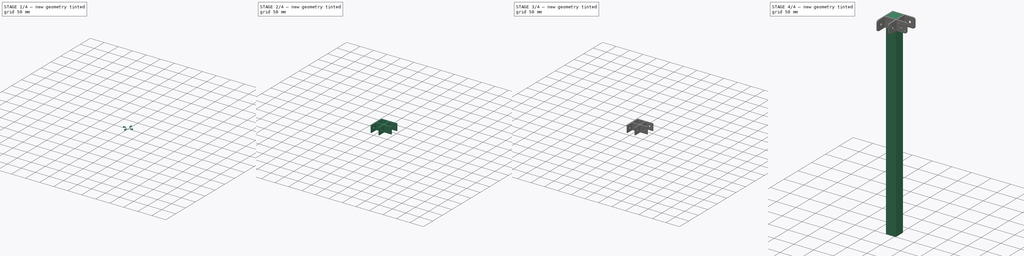
[diagram: build sequence overview — one tinted view per stage of 4, left to right]
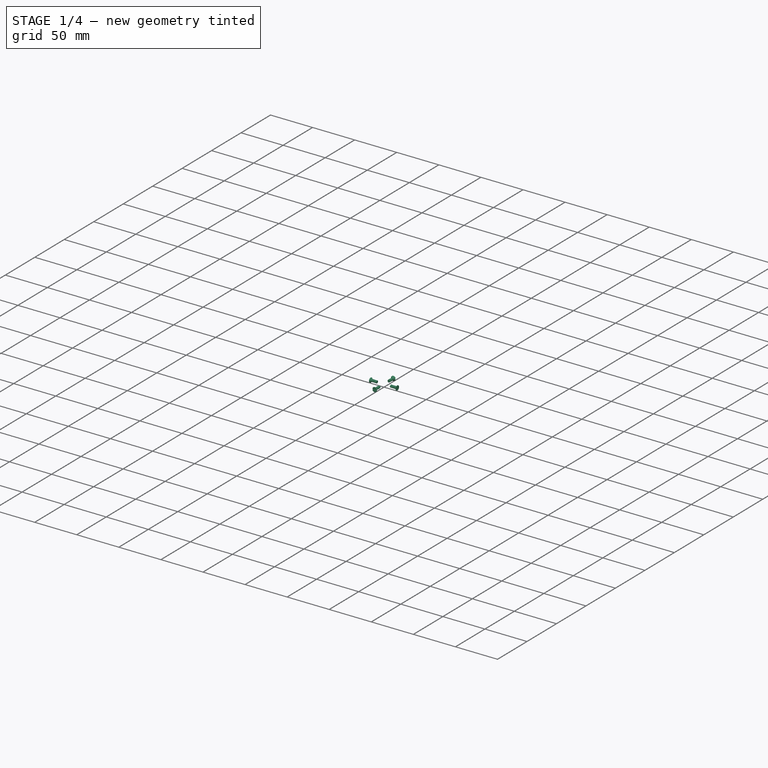
[diagram: stage 1 of 4 — iso view after this stage's code; geometry added in this stage tinted green]
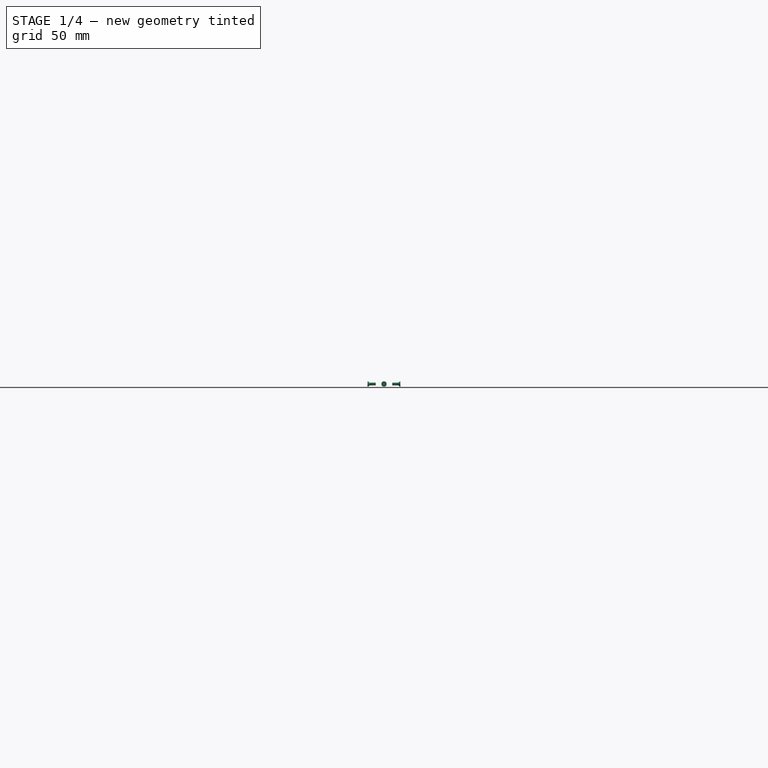
[diagram: stage 1 of 4 — front view after this stage's code; geometry added in this stage tinted green]
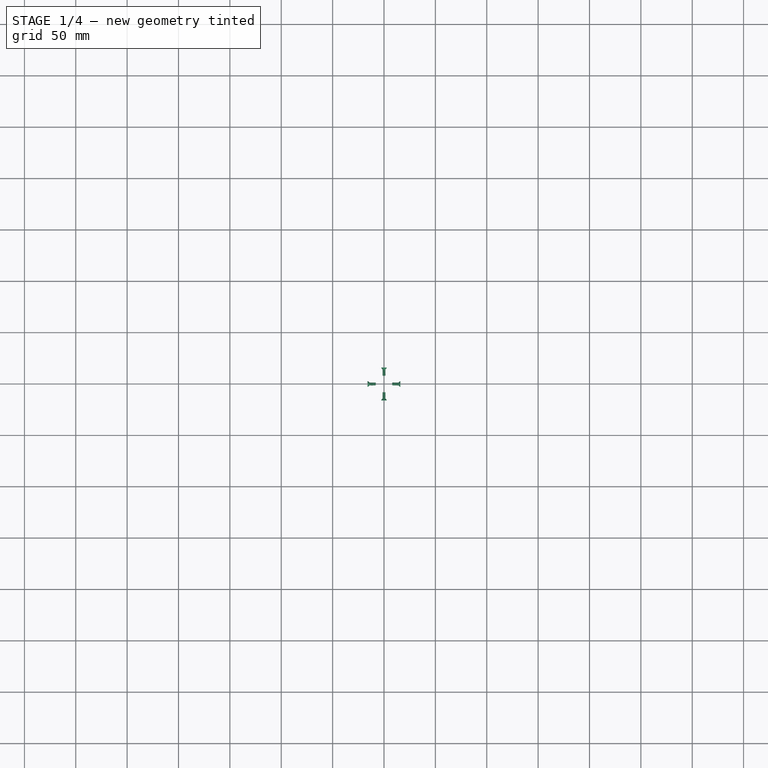
[diagram: stage 1 of 4 — top view after this stage's code; geometry added in this stage tinted green]
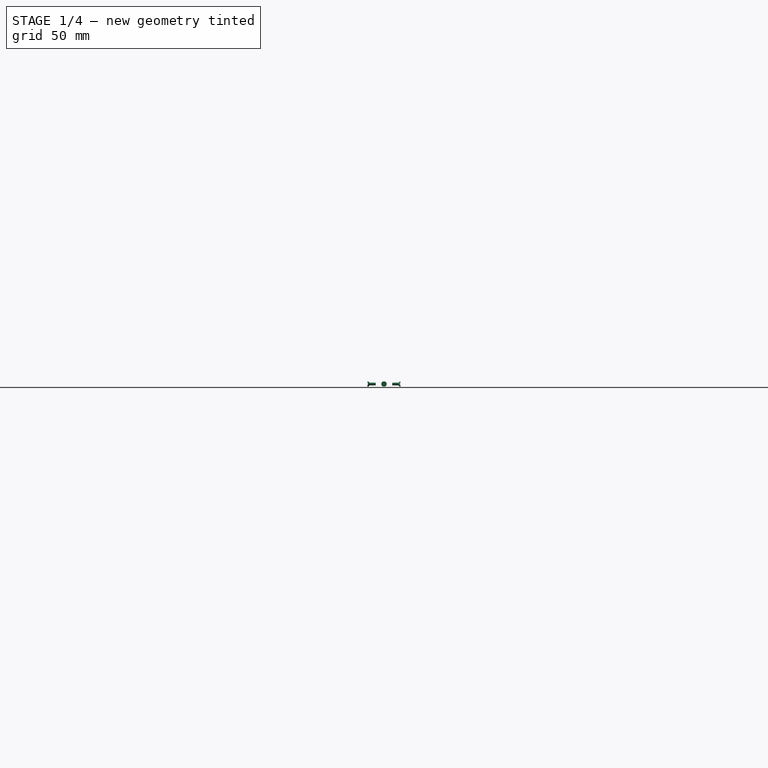
[diagram: stage 1 of 4 — right view after this stage's code; geometry added in this stage tinted green]
FCSTD DOCUMENT  (FreeCAD 0.18.3R)
Label: DI Ejercicio 001
License: All rights reserved
LicenseURL: http://en.wikipedia.org/wiki/All_rights_reserved
objects: Sketcher::SketchObject×7, PartDesign::Pocket×5, Part::FeaturePython×4, PartDesign::Pad×2, PartDesign::Body×2, App::Part×2, PartDesign::PolarPattern×1, PartDesign::Chamfer×1, PartDesign::Fillet×1
note: 30 computed .brp shape members not serialized (recipe doc carries the construction recipe); baked Part::Feature solids carry a one-line shape summary decoded from their .brp

FEATURE [PartDesign::Body] Body001
  Group = -> [Sketch001,Pad001,Sketch002,Pocket,Sketch004,Pocket002,Sketch005,Pocket003,Sketch006,Pocket004,Sketch007,Pocket005,PolarPattern,Chamfer,Fillet]
  Origin = -> Origin003
  Tip = -> Fillet
FEATURE [App::Part] Part001
  Group = -> [Body001]
  Origin = -> Origin001
FEATURE [Part::FeaturePython] Screw  label="M3x8-Screw"  # Fasteners workbench fastener (typed FeaturePython)
  Placement = pos=(0,-16,-12.7) rot=(1,0,0;1.5708rad)
  diameter = 4
  invert = false
  length = 2
  matchOuter = false
  offset = 0
  thread = true
  type = 11
FEATURE [Part::FeaturePython] Screw001  label="M3x8-Screw007"  # Fasteners workbench fastener (typed FeaturePython)
  Placement = pos=(0,16,-12.7) rot=(1,0,0;-1.5708rad)
  diameter = 4
  invert = false
  length = 2
  matchOuter = false
  offset = 0
  thread = true
  type = 11
FEATURE [Part::FeaturePython] Screw002  label="M3x8-Screw008"  # Fasteners workbench fastener (typed FeaturePython)
  Placement = pos=(16,0,-12.7) rot=(0,1,0;1.5708rad)
  diameter = 4
  invert = false
  length = 2
  matchOuter = false
  offset = 0
  thread = true
  type = 11
FEATURE [Part::FeaturePython] Screw003  label="M3x8-Screw009"  # Fasteners workbench fastener (typed FeaturePython)
  Placement = pos=(-16,0,-12.7) rot=(0,1,0;-1.5708rad)
  diameter = 4
  invert = false
  length = 2
  matchOuter = false
  offset = 0
  thread = true
  type = 11
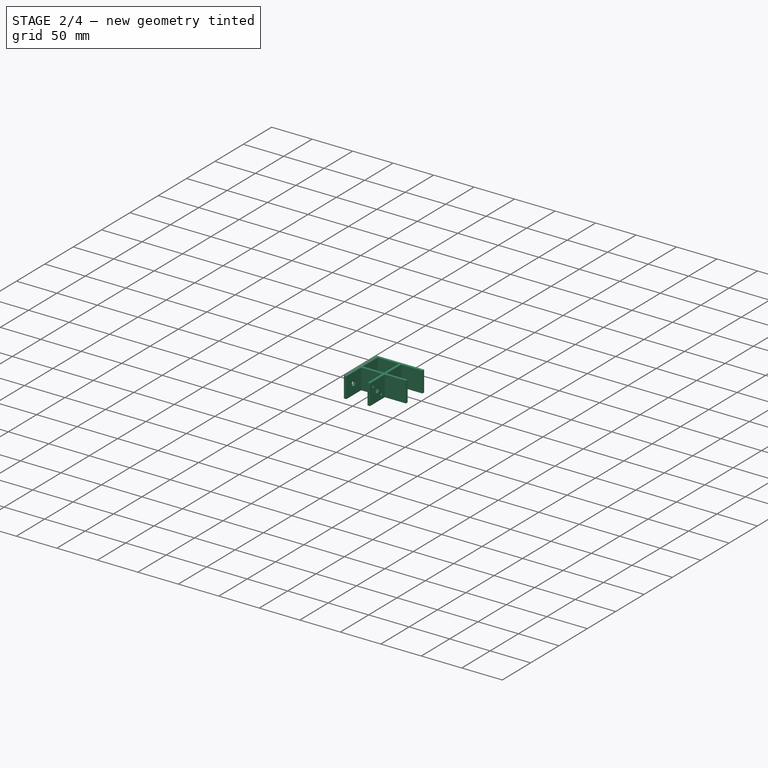
[diagram: stage 2 of 4 — iso view after this stage's code; geometry added in this stage tinted green]
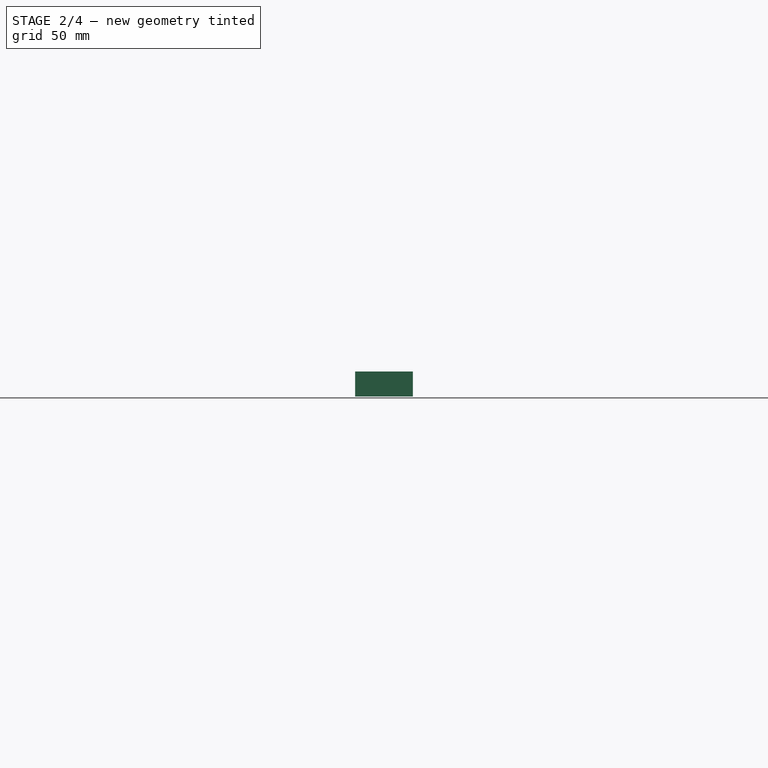
[diagram: stage 2 of 4 — front view after this stage's code; geometry added in this stage tinted green]
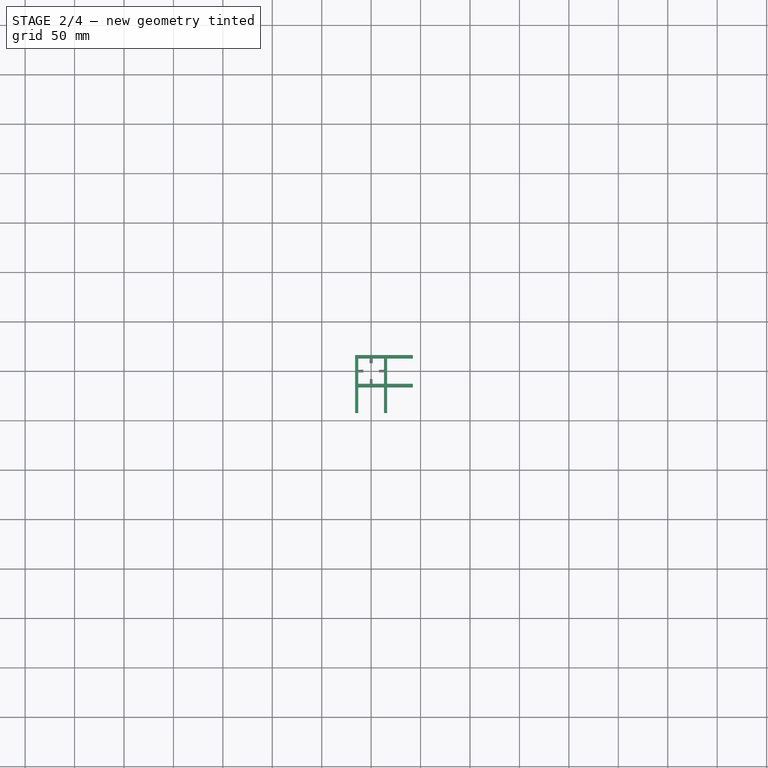
[diagram: stage 2 of 4 — top view after this stage's code; geometry added in this stage tinted green]
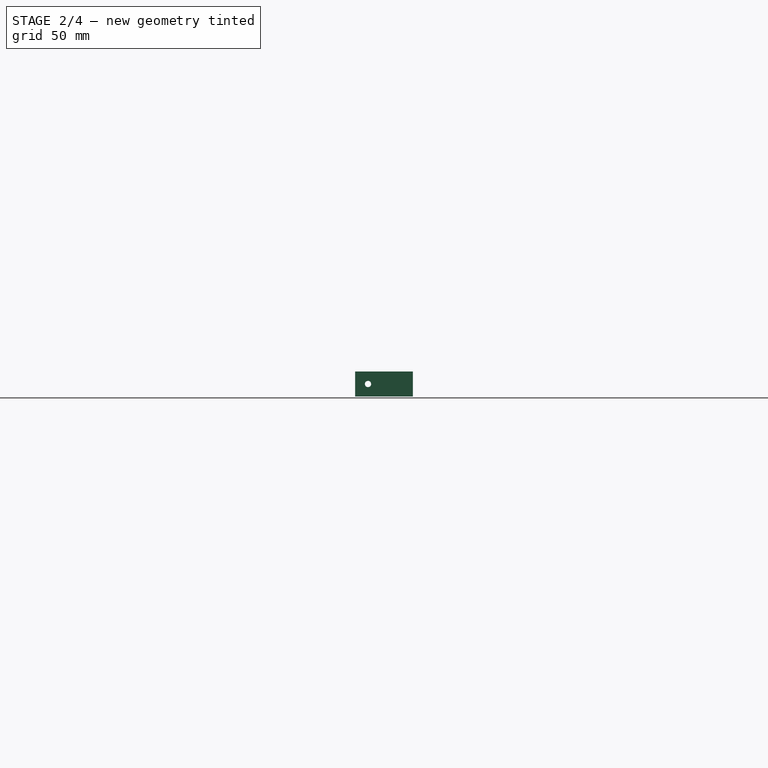
[diagram: stage 2 of 4 — right view after this stage's code; geometry added in this stage tinted green]
FEATURE [PartDesign::Body] Body
  Group = -> [Sketch,Pad]
  Origin = -> Origin002
  Tip = -> Pad
FEATURE [App::Part] Part
  Group = -> [Body]
  Origin = -> Origin
FEATURE [Sketcher::SketchObject] Sketch001
  MapMode = 5
  Support = -> [XY_Plane003]
  sketch-geometry (18):
    g0: LineSegment StartX=-13 StartY=13 StartZ=0 EndX=13 EndY=13 EndZ=0
    g1: LineSegment StartX=13 StartY=13 StartZ=0 EndX=13 EndY=-13 EndZ=0
    g2: LineSegment StartX=13 StartY=-13 StartZ=0 EndX=-13 EndY=-13 EndZ=0
    g3: LineSegment StartX=-13 StartY=-13 StartZ=0 EndX=-13 EndY=13 EndZ=0
    g4: LineSegment StartX=-16.175 StartY=16.175 StartZ=0 EndX=-16.175 EndY=-42.175 EndZ=0
    g5: LineSegment StartX=-16.175 StartY=-42.175 StartZ=0 EndX=-13 EndY=-42.175 EndZ=0
    g6: LineSegment StartX=-13 StartY=-42.175 StartZ=0 EndX=-13 EndY=-16.175 EndZ=0
    g7: LineSegment StartX=-13 StartY=-16.175 StartZ=0 EndX=13 EndY=-16.175 EndZ=0
    g8: LineSegment StartX=13 StartY=-16.175 StartZ=0 EndX=13 EndY=-42.175 EndZ=0
    g9: LineSegment StartX=13 StartY=-42.175 StartZ=0 EndX=16.175 EndY=-42.175 EndZ=0
    g10: LineSegment StartX=16.175 StartY=-42.175 StartZ=0 EndX=16.175 EndY=-16.175 EndZ=0
    g11: LineSegment StartX=16.175 StartY=-16.175 StartZ=0 EndX=42.175 EndY=-16.175 EndZ=0
    g12: LineSegment StartX=42.175 StartY=-16.175 StartZ=0 EndX=42.175 EndY=-13 EndZ=0
    g13: LineSegment StartX=42.175 StartY=-13 StartZ=0 EndX=16.175 EndY=-13 EndZ=0
    g14: LineSegment StartX=16.175 StartY=-13 StartZ=0 EndX=16.175 EndY=13 EndZ=0
    g15: LineSegment StartX=16.175 StartY=13 StartZ=0 EndX=42.175 EndY=13 EndZ=0
    g16: LineSegment StartX=42.175 StartY=13 StartZ=0 EndX=42.175 EndY=16.175 EndZ=0
    g17: LineSegment StartX=42.175 StartY=16.175 StartZ=0 EndX=-16.175 EndY=16.175 EndZ=0
  constraints (53):
    c: Coincident(g0,g1)
    c: Coincident(g1,g2)
    c: Coincident(g2,g3)
    c: Coincident(g3,g0)
    c: Horizontal(g0)
    c: Horizontal(g2)
    c: Vertical(g1)
    c: Vertical(g3)
    c: Vertical(g4)
    c: Coincident(g4,g5)
    c: Coincident(g5,g6)
    c: Vertical(g6)
    c: Coincident(g6,g7)
    c: Horizontal(g7)
    c: Coincident(g7,g8)
    c: Vertical(g8)
    c: Coincident(g8,g9)
    c: Horizontal(g9)
    c: Coincident(g9,g10)
    c: Coincident(g10,g11)
    c: Horizontal(g11)
    c: Coincident(g11,g12)
    c: Coincident(g12,g13)
    c: Horizontal(g13)
    c: Coincident(g13,g14)
    c: Vertical(g14)
    c: Coincident(g14,g15)
    c: Horizontal(g15)
    c: Coincident(g15,g16)
    c: Vertical(g16)
    c: Coincident(g16,g17)
    c: Coincident(g17,g4)
    c: Horizontal(g17)
    c: Vertical(g10)
    c: Horizontal(g5)
    c: Vertical(g6,g2)
    c: Horizontal(g14,g0)
    c: Vertical(g13,g10)
    c: Horizontal(g13,g1)
    c: Vertical(g7,g1)
    c: Horizontal(g10,g7)
    c: Equal(g5,g9)
    c: Equal(g9,g12)
    c: Equal(g12,g16)
    c: Vertical(g12)
    c: DistanceX(g5,g5) = 3.175
    c: Equal(g8,g6)
    c: Equal(g11,g10)
    c: Equal(g10,g15)
    c: Symmetric(g1,g0,g-1)
    c: Equal(g1,g0)
    c: DistanceY(g3,g3) = 26
    c: Equal(g6,g3)
FEATURE [PartDesign::Pad] Pad001
  Length = 25.4
  Length2 = 100
  Profile = -> Sketch001
  Refine = true
  Reversed = true
  Type = 0
FEATURE [Sketcher::SketchObject] Sketch002
  ExternalGeometry = -> [Pad001]
  MapMode = 5
  Placement = pos=(16.175,0,0) rot=(0.57735,0.57735,0.57735;2.0944rad)
  Support = -> [Pad001]
  sketch-geometry (5):
    g0: Circle CenterX=-36.3281 CenterY=-5.71195 CenterZ=0 NormalX=0 NormalY=0 NormalZ=1 AngleXU=0 Radius=1.5875
    g1: Circle CenterX=-29.175 CenterY=-12.7 CenterZ=0 NormalX=0 NormalY=0 NormalZ=1 AngleXU=0 Radius=3.175
    g2: Circle CenterX=-22.0219 CenterY=-19.6881 CenterZ=0 NormalX=0 NormalY=0 NormalZ=1 AngleXU=0 Radius=1.5875
    g3: LineSegment [constr] StartX=-42.175 StartY=0 StartZ=0 EndX=-29.175 EndY=-12.7 EndZ=0
    g4: LineSegment [constr] StartX=-29.175 StartY=-12.7 StartZ=0 EndX=-16.175 EndY=-25.4 EndZ=0
  constraints (12):
    c: Coincident(g3,g-4)
    c: Coincident(g3,g1)
    c: Coincident(g3,g4)
    c: Coincident(g4,g-3)
    c: Equal(g3,g4)
    c: Parallel(g4,g3)
    c: PointOnObject(g2,g4)
    c: Symmetric(g0,g2,g1)
    c: Radius(g2) = 1.5875
    c: Equal(g0,g2)
    c: Radius(g1) = 3.175
    c: Distance(g2,g0) = 20
FEATURE [PartDesign::Pocket] Pocket
  BaseFeature = -> Pad001
  Length = 5
  Length2 = 100
  Profile = -> Sketch002
  Refine = true
  Type = 0
FEATURE [Sketcher::SketchObject] Sketch004
  ExternalGeometry = -> [Pocket]
  MapMode = 5
  Placement = pos=(-13,0,0) rot=(0.57735,0.57735,0.57735;2.0944rad)
  Support = -> [Pocket]
  sketch-geometry (1):
    g0: Circle CenterX=-29.175 CenterY=-12.7 CenterZ=0 NormalX=0 NormalY=0 NormalZ=1 AngleXU=0 Radius=3.175
  constraints (2):
    c: Coincident(g0,g-3)
    c: Equal(g0,g-3)
FEATURE [PartDesign::Pocket] Pocket002
  BaseFeature = -> Pocket
  Length = 5
  Length2 = 100
  Profile = -> Sketch004
  Refine = true
  Type = 1
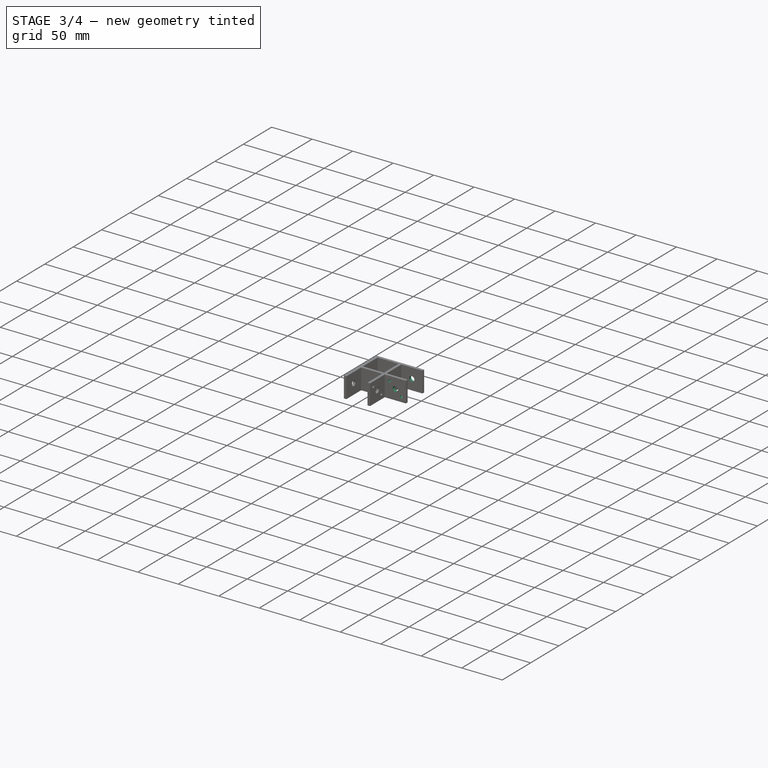
[diagram: stage 3 of 4 — iso view after this stage's code; geometry added in this stage tinted green]
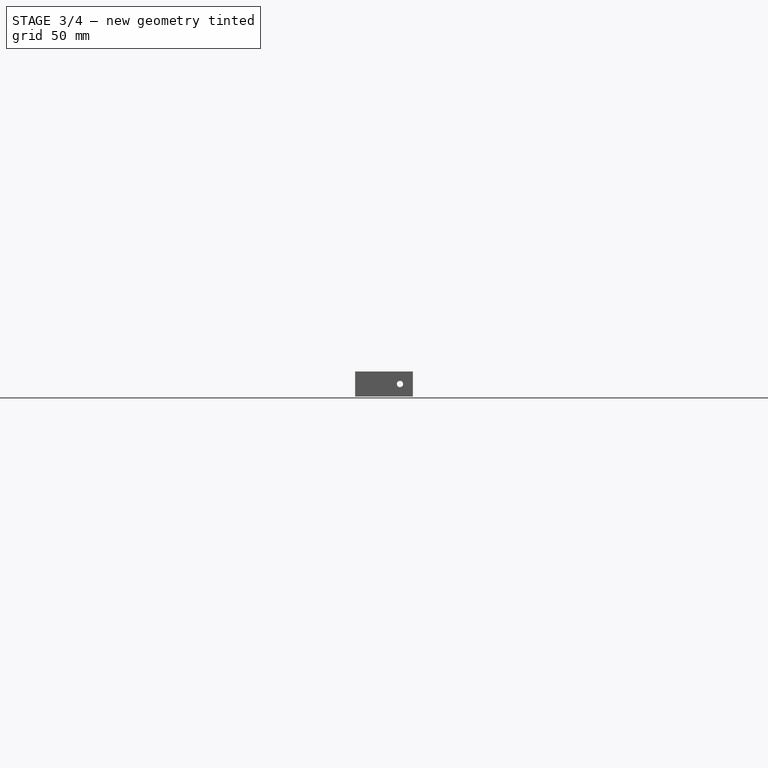
[diagram: stage 3 of 4 — front view after this stage's code; geometry added in this stage tinted green]
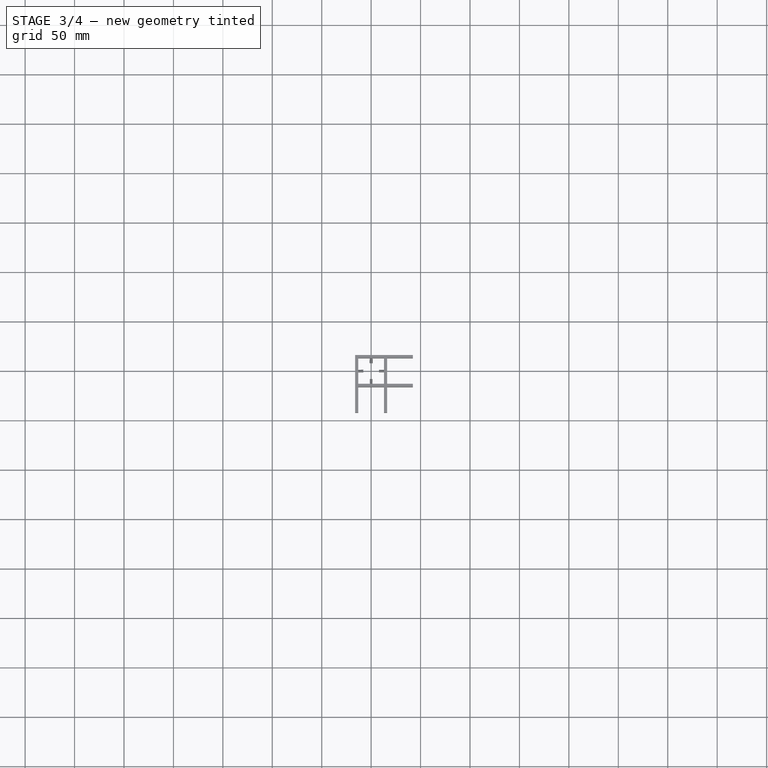
[diagram: stage 3 of 4 — top view after this stage's code; geometry added in this stage tinted green]
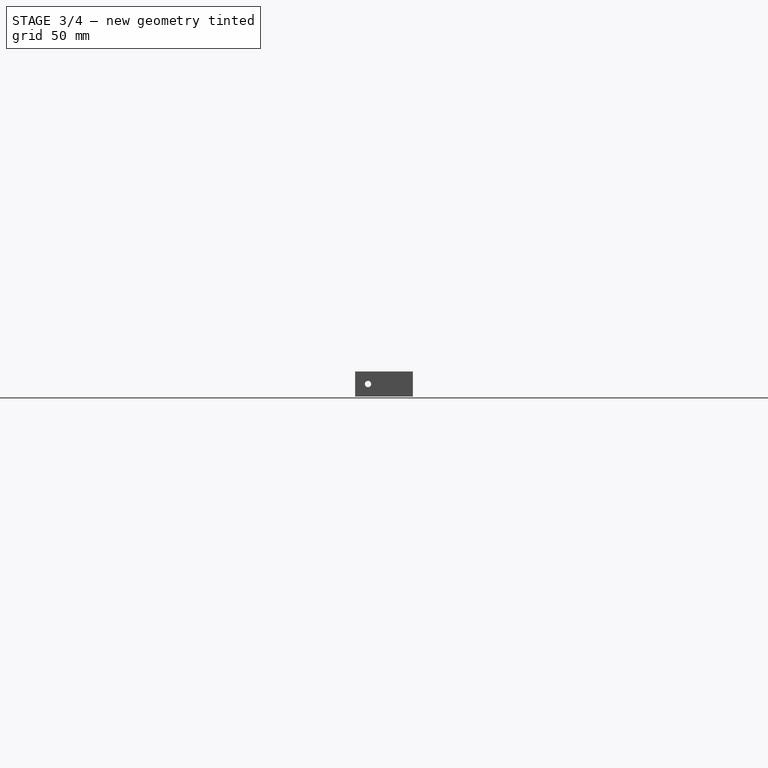
[diagram: stage 3 of 4 — right view after this stage's code; geometry added in this stage tinted green]
FEATURE [Sketcher::SketchObject] Sketch005
  ExternalGeometry = -> [Pocket002]
  MapMode = 5
  Placement = pos=(0,-16.175,0) rot=(1,0,0;1.5708rad)
  Support = -> [Pocket002]
  sketch-geometry (5):
    g0: LineSegment [constr] StartX=16.175 StartY=-2.9e-15 StartZ=0 EndX=29.175 EndY=-12.7 EndZ=0
    g1: LineSegment [constr] StartX=29.175 StartY=-12.7 StartZ=0 EndX=42.175 EndY=-25.4 EndZ=0
    g2: Circle CenterX=29.175 CenterY=-12.7 CenterZ=0 NormalX=0 NormalY=0 NormalZ=1 AngleXU=0 Radius=3.175
    g3: Circle CenterX=36.3281 CenterY=-19.6881 CenterZ=0 NormalX=0 NormalY=0 NormalZ=1 AngleXU=0 Radius=1.6
    g4: Circle CenterX=22.0219 CenterY=-5.71195 CenterZ=0 NormalX=0 NormalY=0 NormalZ=1 AngleXU=0 Radius=1.6
  constraints (12):
    c: Coincident(g0,g-3)
    c: Coincident(g0,g1)
    c: Coincident(g-4,g1)
    c: Equal(g1,g0)
    c: Parallel(g1,g0)
    c: Coincident(g2,g0)
    c: PointOnObject(g3,g1)
    c: Equal(g4,g3)
    c: Radius(g3) = 1.6
    c: Radius(g2) = 3.175
    c: Distance(g4,g3) = 20
    c: Symmetric(g4,g3,g2)
FEATURE [PartDesign::Pocket] Pocket003
  BaseFeature = -> Pocket002
  Length = 5
  Length2 = 100
  Profile = -> Sketch005
  Refine = true
  Type = 0
FEATURE [Sketcher::SketchObject] Sketch006
  ExternalGeometry = -> [Pocket003]
  MapMode = 5
  Placement = pos=(0,13,0) rot=(1,0,0;1.5708rad)
  Support = -> [Pocket003]
  sketch-geometry (1):
    g0: Circle CenterX=29.175 CenterY=-12.7 CenterZ=0 NormalX=0 NormalY=0 NormalZ=1 AngleXU=0 Radius=3.175
  constraints (2):
    c: Coincident(g0,g-3)
    c: Equal(g0,g-3)
FEATURE [PartDesign::Pocket] Pocket004
  BaseFeature = -> Pocket003
  Length = 5
  Length2 = 100
  Profile = -> Sketch006
  Refine = true
  Type = 1
FEATURE [Sketcher::SketchObject] Sketch007
  ExternalGeometry = -> [Pocket004]
  MapMode = 5
  Placement = pos=(0,-16.175,0) rot=(1,0,0;1.5708rad)
  Support = -> [Pocket004]
  sketch-geometry (3):
    g0: LineSegment [constr] StartX=0 StartY=0 StartZ=0 EndX=0 EndY=-12.7 EndZ=0
    g1: LineSegment [constr] StartX=0 StartY=-12.7 StartZ=0 EndX=0 EndY=-25.4 EndZ=0
    g2: Circle CenterX=0 CenterY=-12.7 CenterZ=0 NormalX=0 NormalY=0 NormalZ=1 AngleXU=0 Radius=1.5875
  constraints (8):
    c: Coincident(g-1,g0)
    c: Vertical(g0)
    c: Coincident(g0,g1)
    c: PointOnObject(g1,g-3)
    c: Vertical(g1)
    c: Equal(g0,g1)
    c: Coincident(g2,g0)
    c: Radius(g2) = 1.5875
FEATURE [PartDesign::Pocket] Pocket005
  BaseFeature = -> Pocket004
  Length = 5
  Length2 = 100
  Profile = -> Sketch007
  Refine = true
  Type = 0
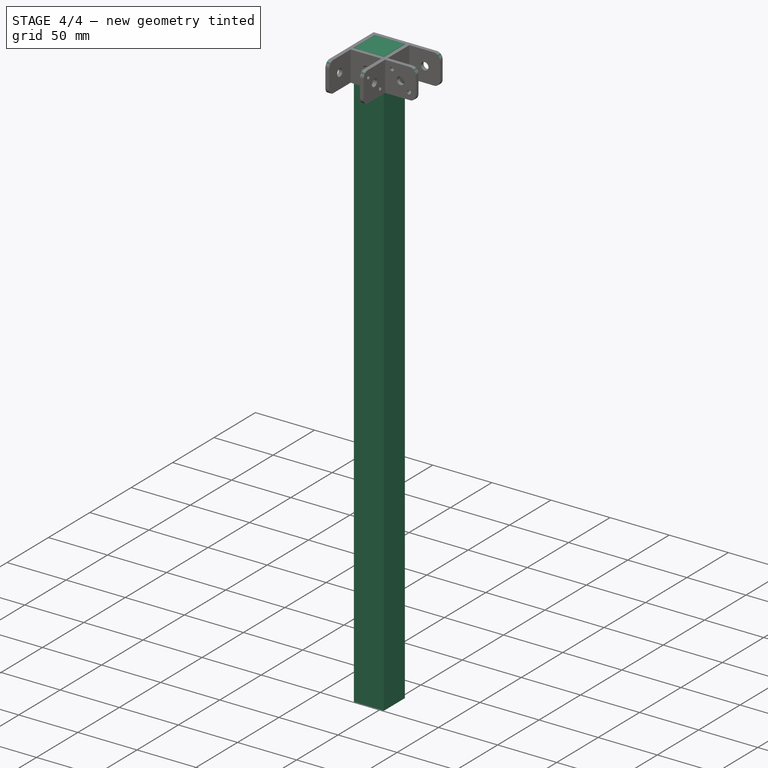
[diagram: stage 4 of 4 — iso view after this stage's code; geometry added in this stage tinted green]
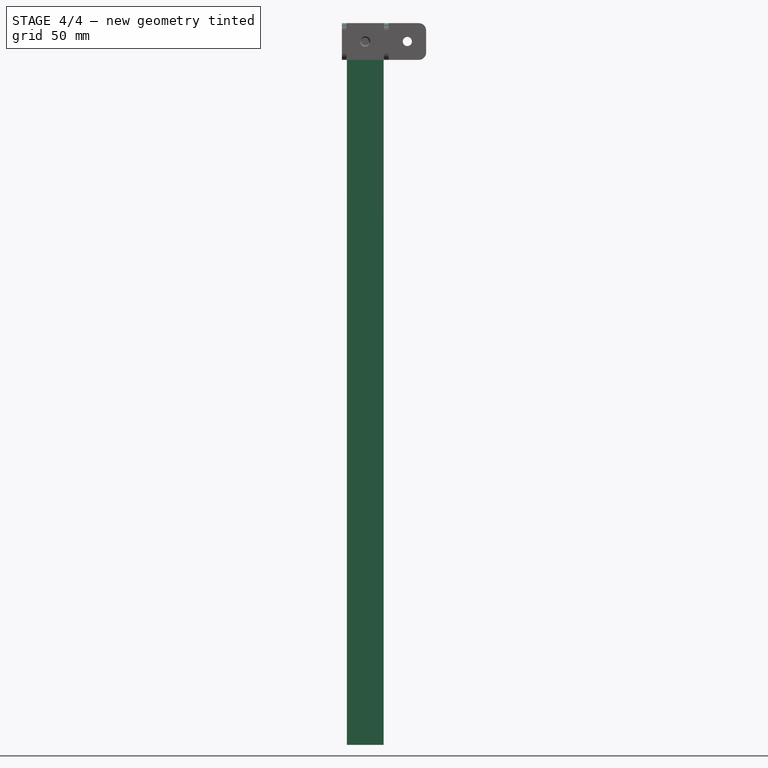
[diagram: stage 4 of 4 — front view after this stage's code; geometry added in this stage tinted green]
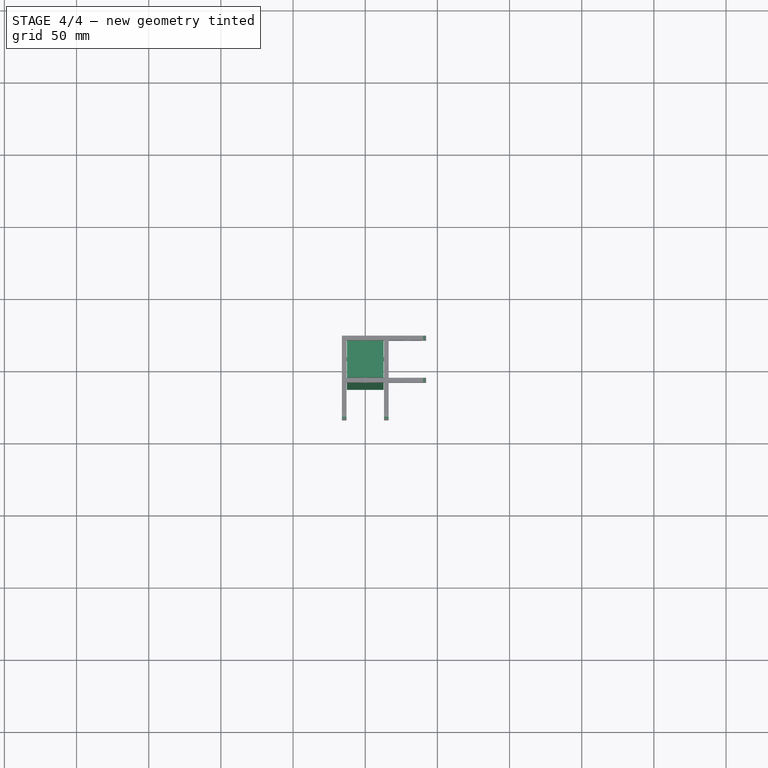
[diagram: stage 4 of 4 — top view after this stage's code; geometry added in this stage tinted green]
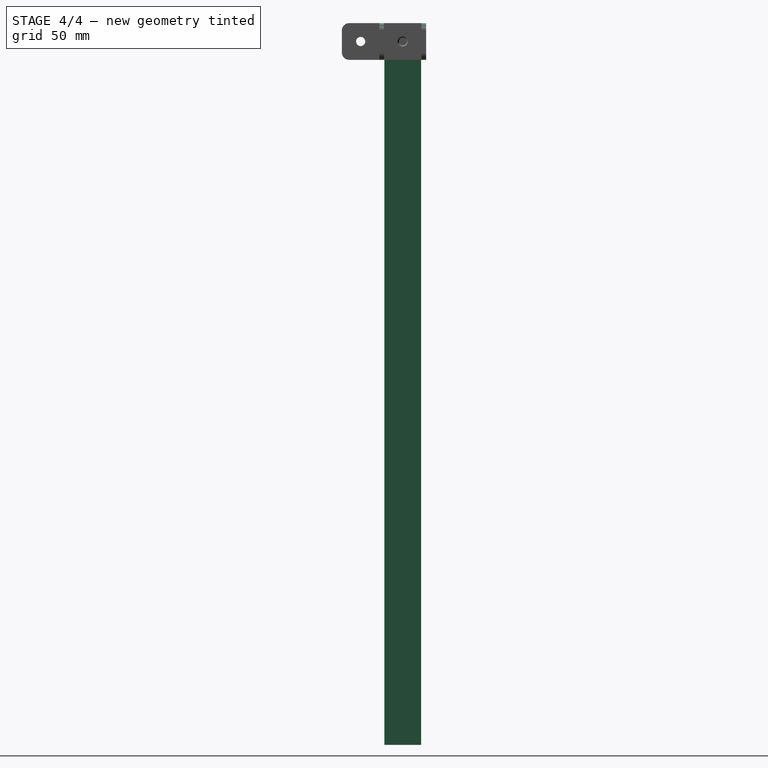
[diagram: stage 4 of 4 — right view after this stage's code; geometry added in this stage tinted green]
FEATURE [Sketcher::SketchObject] Sketch
  MapMode = 5
  Support = -> [XY_Plane002]
  sketch-geometry (4):
    g0: LineSegment StartX=-12.7 StartY=12.7 StartZ=0 EndX=12.7 EndY=12.7 EndZ=0
    g1: LineSegment StartX=12.7 StartY=12.7 StartZ=0 EndX=12.7 EndY=-12.7 EndZ=0
    g2: LineSegment StartX=12.7 StartY=-12.7 StartZ=0 EndX=-12.7 EndY=-12.7 EndZ=0
    g3: LineSegment StartX=-12.7 StartY=-12.7 StartZ=0 EndX=-12.7 EndY=12.7 EndZ=0
  constraints (11):
    c: Coincident(g0,g1)
    c: Coincident(g1,g2)
    c: Coincident(g2,g3)
    c: Coincident(g3,g0)
    c: Horizontal(g0)
    c: Horizontal(g2)
    c: Vertical(g1)
    c: Vertical(g3)
    c: Symmetric(g1,g0,g-1)
    c: Equal(g0,g1)
    c: DistanceX(g0,g0) = 25.4
FEATURE [PartDesign::Pad] Pad
  Length = 500
  Length2 = 100
  Profile = -> Sketch
  Refine = true
  Reversed = true
  Type = 0
FEATURE [PartDesign::PolarPattern] PolarPattern
  Angle = 360
  Axis = -> Z_Axis003
  BaseFeature = -> Pocket005
  Occurrences = 4
  Originals = -> [Pocket005]
  Refine = true
FEATURE [PartDesign::Chamfer] Chamfer
  Base = -> PolarPattern [Edge56,Edge76,Edge11,Edge6]
  BaseFeature = -> PolarPattern
  Size = 2
FEATURE [PartDesign::Fillet] Fillet
  Base = -> Chamfer [Edge18,Edge34,Edge14,Edge30,Edge21,Edge37,Edge25,Edge41]
  BaseFeature = -> Chamfer
  Radius = 5
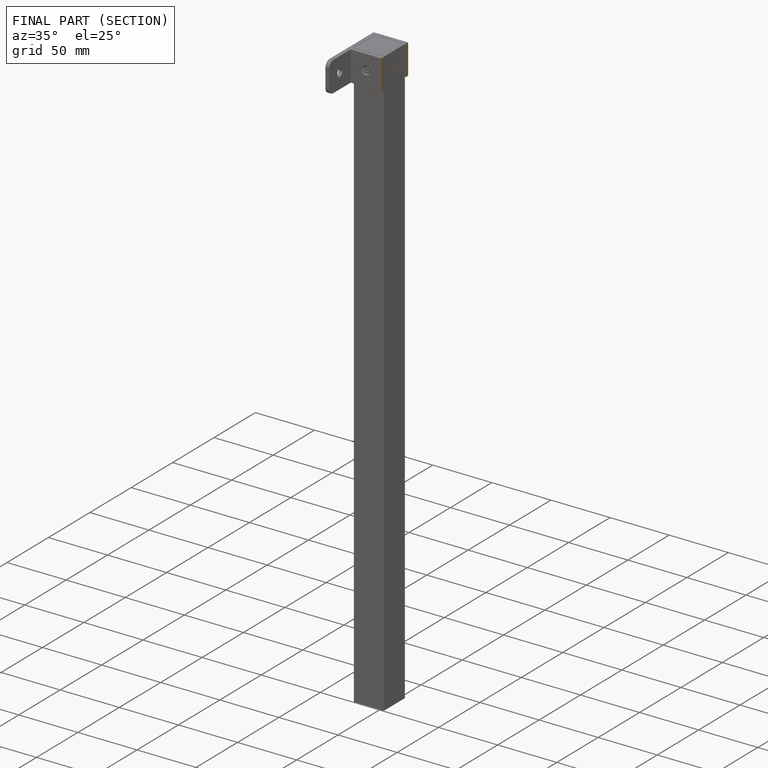
[diagram: finished part — half-section view (interior)]
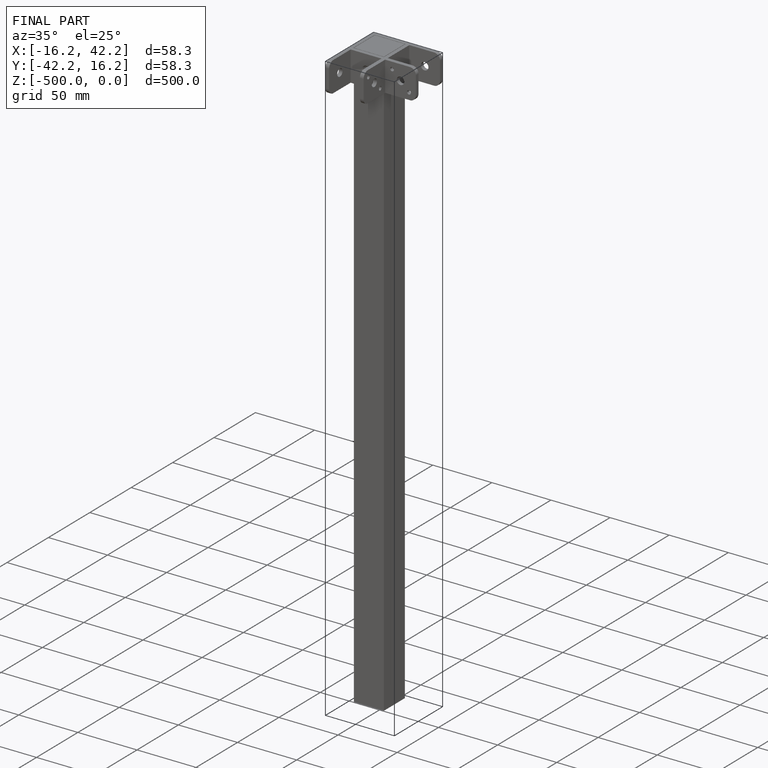
[diagram: finished part — iso view with bounding-box wireframe]
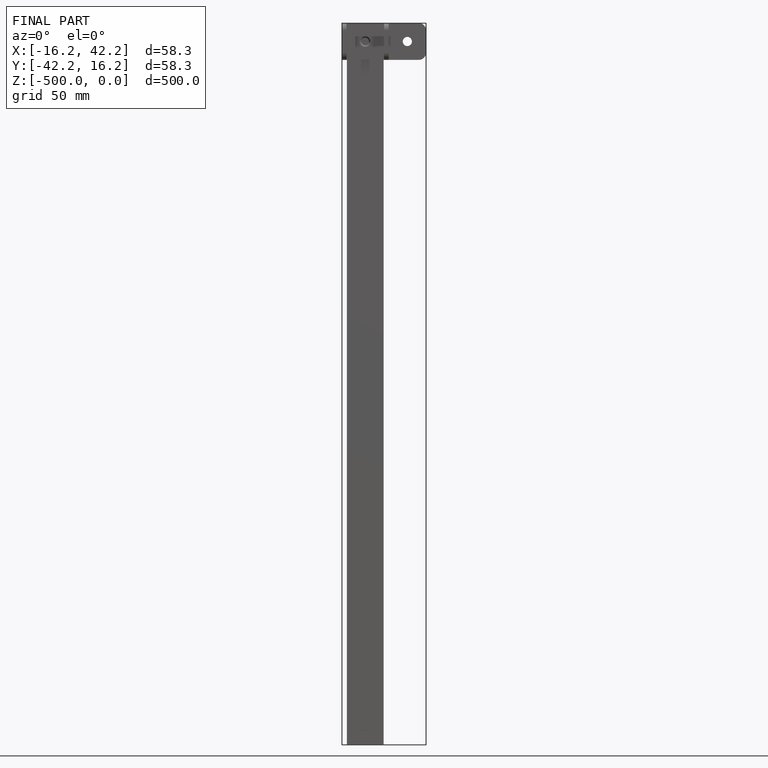
[diagram: finished part — front view with bounding-box wireframe]
